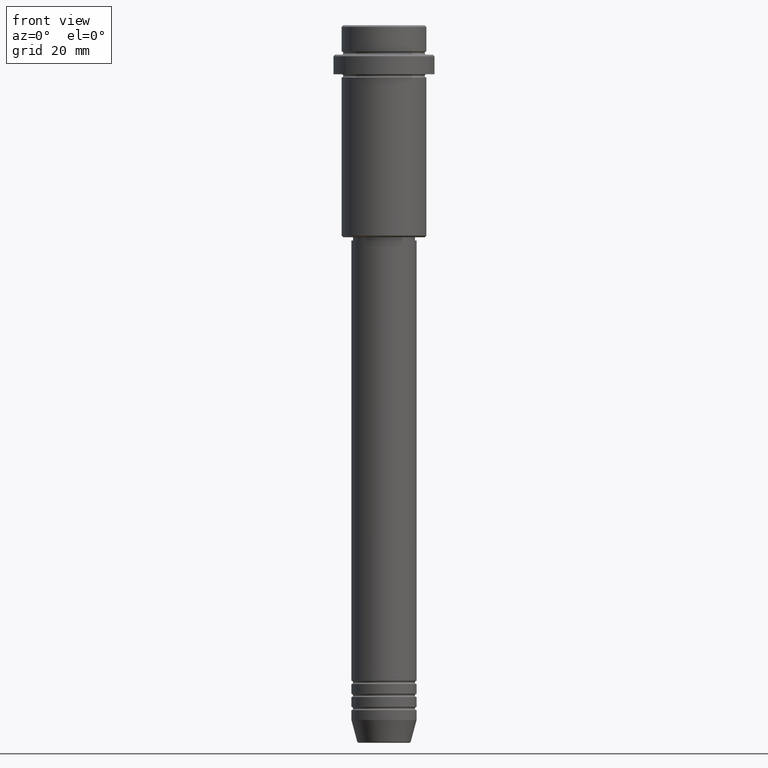
[diagram: clean part render]
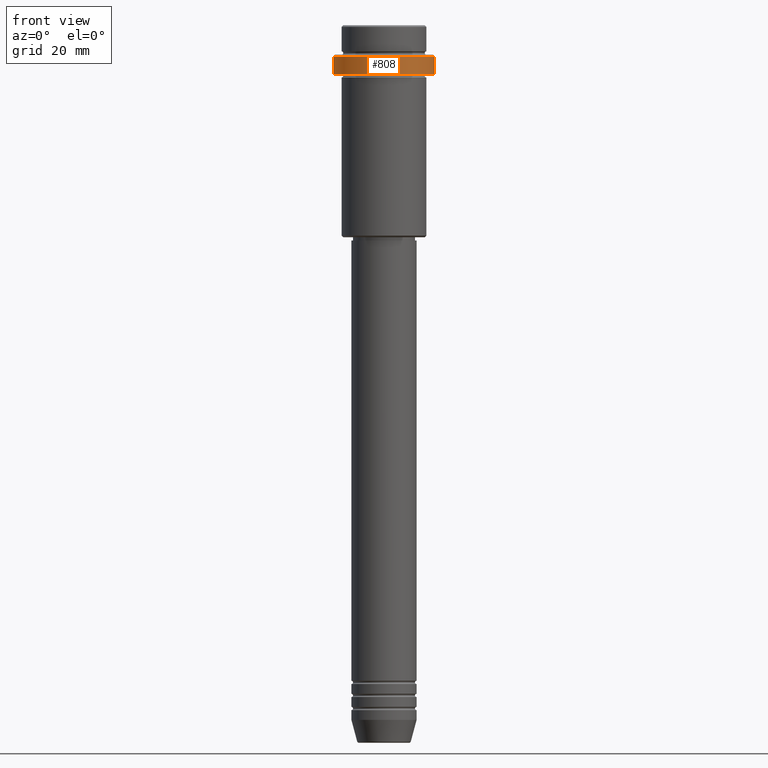
[diagram: same view with one face highlighted and labeled with its STEP entity id]
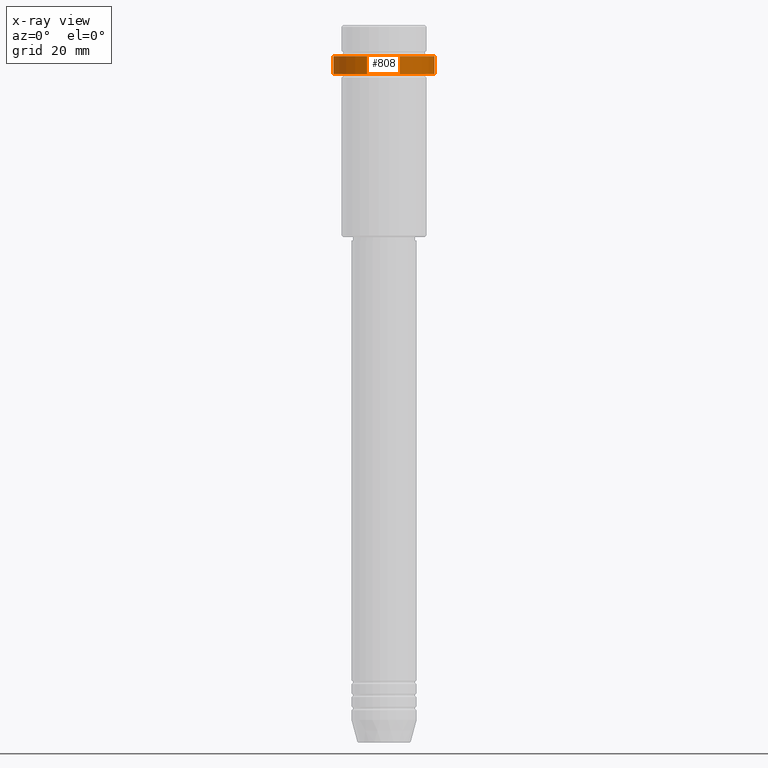
[diagram: x-ray of the same camera — body ghosted, the highlighted face saturated]
A machine part, front view. The second image highlights one B-rep face of the part: STEP entity #808.
The next image is the same camera in x-ray: the body ghosted, the highlighted face saturated — about 0% of this face is hidden behind the body in this view.
In plain terms, the highlighted cylindrical surface (partial cylindrical patch) has radius 15.5 mm, axis along (-0, -0, 1).
Its self-contained STEP definition (entity closure, byte-faithful):
#18 = DIRECTION ( 'NONE',  ( 1.000000000000000000, 0.000000000000000000, 0.000000000000000000 ) ) ;
#89 = DIRECTION ( 'NONE',  ( 0.000000000000000000, 0.000000000000000000, -1.000000000000000000 ) ) ;
#134 = LINE ( 'NONE', #332, #1361 ) ;
#141 = CARTESIAN_POINT ( 'NONE',  ( -15.50000000000000000, 1.898202538678397557E-15, 0.000000000000000000 ) ) ;
#213 = VERTEX_POINT ( 'NONE', #661 ) ;
#228 = ORIENTED_EDGE ( 'NONE', *, *, #1163, .T. ) ;
#242 = EDGE_LOOP ( 'NONE', ( #377, #1270, #525, #228 ) ) ;
#279 = DIRECTION ( 'NONE',  ( 1.000000000000000000, 0.000000000000000000, 0.000000000000000000 ) ) ;
#316 = CARTESIAN_POINT ( 'NONE',  ( 0.000000000000000000, 0.000000000000000000, -15.00000000000000000 ) ) ;
#332 = CARTESIAN_POINT ( 'NONE',  ( 15.50000000000000000, 0.000000000000000000, 0.000000000000000000 ) ) ;
#356 = VERTEX_POINT ( 'NONE', #465 ) ;
#377 = ORIENTED_EDGE ( 'NONE', *, *, #471, .F. ) ;
#380 = AXIS2_PLACEMENT_3D ( 'NONE', #316, #412, #540 ) ;
#406 = CIRCLE ( 'NONE', #380, 15.50000000000000000 ) ;
#412 = DIRECTION ( 'NONE',  ( -0.000000000000000000, -0.000000000000000000, 1.000000000000000000 ) ) ;
#450 = FACE_OUTER_BOUND ( 'NONE', #242, .T. ) ;
#455 = CARTESIAN_POINT ( 'NONE',  ( 0.000000000000000000, 0.000000000000000000, 0.000000000000000000 ) ) ;
#464 = DIRECTION ( 'NONE',  ( -0.000000000000000000, -0.000000000000000000, 1.000000000000000000 ) ) ;
#465 = CARTESIAN_POINT ( 'NONE',  ( -15.50000000000000000, 1.898202538678397557E-15, -15.00000000000000000 ) ) ;
#471 = EDGE_CURVE ( 'NONE', #356, #1289, #794, .T. ) ;
#525 = ORIENTED_EDGE ( 'NONE', *, *, #698, .T. ) ;
#540 = DIRECTION ( 'NONE',  ( 1.000000000000000000, 0.000000000000000000, 0.000000000000000000 ) ) ;
#581 = CARTESIAN_POINT ( 'NONE',  ( -15.50000000000000000, 1.898202538678397557E-15, -9.500000000000039080 ) ) ;
#605 = EDGE_CURVE ( 'NONE', #356, #213, #406, .T. ) ;
#606 = CARTESIAN_POINT ( 'NONE',  ( 0.000000000000000000, 0.000000000000000000, -9.500000000000039080 ) ) ;
#661 = CARTESIAN_POINT ( 'NONE',  ( 15.50000000000000000, 0.000000000000000000, -15.00000000000000000 ) ) ;
#698 = EDGE_CURVE ( 'NONE', #213, #784, #134, .T. ) ;
#725 = DIRECTION ( 'NONE',  ( -0.000000000000000000, -0.000000000000000000, 1.000000000000000000 ) ) ;
#784 = VERTEX_POINT ( 'NONE', #1219 ) ;
#794 = LINE ( 'NONE', #141, #882 ) ;
#808 = ADVANCED_FACE ( 'NONE', ( #450 ), #1002, .T. ) ;
#842 = CIRCLE ( 'NONE', #1274, 15.50000000000000000 ) ;
#882 = VECTOR ( 'NONE', #725, 1000.000000000000000 ) ;
#888 = DIRECTION ( 'NONE',  ( -0.000000000000000000, -0.000000000000000000, 1.000000000000000000 ) ) ;
#1002 = CYLINDRICAL_SURFACE ( 'NONE', #1114, 15.50000000000000000 ) ;
#1114 = AXIS2_PLACEMENT_3D ( 'NONE', #455, #888, #18 ) ;
#1163 = EDGE_CURVE ( 'NONE', #784, #1289, #842, .T. ) ;
#1219 = CARTESIAN_POINT ( 'NONE',  ( 15.50000000000000000, 0.000000000000000000, -9.500000000000039080 ) ) ;
#1270 = ORIENTED_EDGE ( 'NONE', *, *, #605, .T. ) ;
#1274 = AXIS2_PLACEMENT_3D ( 'NONE', #606, #89, #279 ) ;
#1289 = VERTEX_POINT ( 'NONE', #581 ) ;
#1361 = VECTOR ( 'NONE', #464, 1000.000000000000000 ) ;